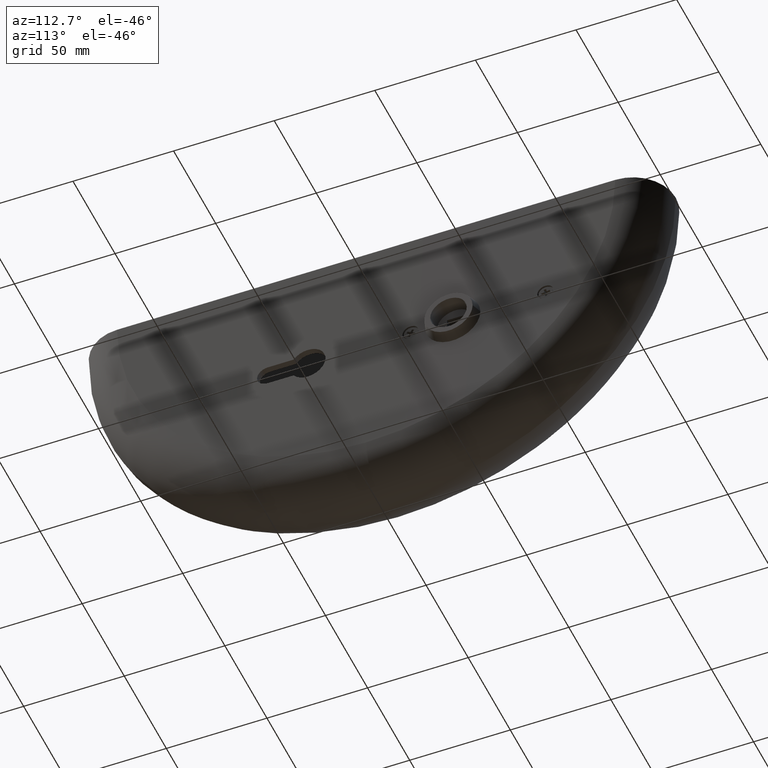
[diagram: clean part render]
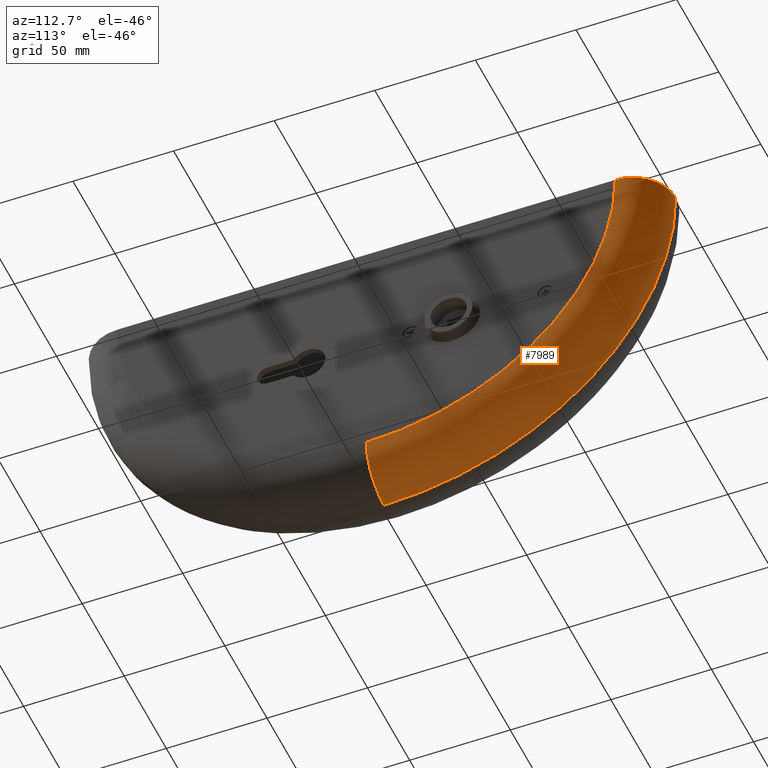
[diagram: same view with one face highlighted and labeled with its STEP entity id]
A machine part, auxiliary view. The second image highlights one B-rep face of the part: STEP entity #7989.
In plain terms, the highlighted toroidal blend (fillet) surface has major radius 123.8 mm and minor (blend) radius 21.2 mm.
Its self-contained STEP definition (entity closure, byte-faithful):
#464 = CARTESIAN_POINT ( 'NONE',  ( 21.19999999999999929, 0.000000000000000000, -123.7999999999999972 ) ) ;
#614 = DIRECTION ( 'NONE',  ( 0.000000000000000000, 1.776356839400250465E-15, -1.000000000000000000 ) ) ;
#738 = ORIENTED_EDGE ( 'NONE', *, *, #7790, .F. ) ;
#762 = ORIENTED_EDGE ( 'NONE', *, *, #3387, .F. ) ;
#1718 = CARTESIAN_POINT ( 'NONE',  ( 0.000000000000000000, 0.000000000000000000, -145.0000000000000000 ) ) ;
#1976 = VERTEX_POINT ( 'NONE', #464 ) ;
#2106 = DIRECTION ( 'NONE',  ( 0.000000000000000000, 1.000000000000000000, 2.871266442996094569E-16 ) ) ;
#2474 = AXIS2_PLACEMENT_3D ( 'NONE', #2576, #15585, #15695 ) ;
#2576 = CARTESIAN_POINT ( 'NONE',  ( 0.000000000000000000, 0.000000000000000000, 0.000000000000000000 ) ) ;
#3183 = DIRECTION ( 'NONE',  ( -1.000000000000000000, -0.000000000000000000, -0.000000000000000000 ) ) ;
#3235 = CARTESIAN_POINT ( 'NONE',  ( 21.19999999999999929, 123.7999999999999972, 4.942406637210611103E-14 ) ) ;
#3374 = CIRCLE ( 'NONE', #5620, 21.19999999999999574 ) ;
#3387 = EDGE_CURVE ( 'NONE', #1976, #13237, #12511, .T. ) ;
#4480 = CARTESIAN_POINT ( 'NONE',  ( 0.000000000000000000, 0.000000000000000000, -123.7999999999999972 ) ) ;
#5225 = VERTEX_POINT ( 'NONE', #9985 ) ;
#5435 = CIRCLE ( 'NONE', #11193, 21.19999999999999574 ) ;
#5620 = AXIS2_PLACEMENT_3D ( 'NONE', #15219, #8722, #2106 ) ;
#7050 = DIRECTION ( 'NONE',  ( 0.000000000000000000, 0.000000000000000000, -1.000000000000000000 ) ) ;
#7057 = FACE_OUTER_BOUND ( 'NONE', #11012, .T. ) ;
#7790 = EDGE_CURVE ( 'NONE', #15167, #1976, #5435, .T. ) ;
#7989 = ADVANCED_FACE ( 'NONE', ( #7057 ), #12354, .T. ) ;
#8477 = DIRECTION ( 'NONE',  ( 0.000000000000000000, -1.000000000000000000, 0.000000000000000000 ) ) ;
#8722 = DIRECTION ( 'NONE',  ( -0.000000000000000000, -2.871266442996094569E-16, 1.000000000000000000 ) ) ;
#9071 = AXIS2_PLACEMENT_3D ( 'NONE', #14885, #3183, #614 ) ;
#9985 = CARTESIAN_POINT ( 'NONE',  ( 0.000000000000000000, 145.0000000000000000, 5.551115123125782702E-14 ) ) ;
#10866 = ORIENTED_EDGE ( 'NONE', *, *, #11428, .F. ) ;
#11012 = EDGE_LOOP ( 'NONE', ( #738, #10866, #15186, #762 ) ) ;
#11020 = EDGE_CURVE ( 'NONE', #13237, #5225, #3374, .T. ) ;
#11193 = AXIS2_PLACEMENT_3D ( 'NONE', #4480, #8477, #14873 ) ;
#11428 = EDGE_CURVE ( 'NONE', #5225, #15167, #11895, .T. ) ;
#11895 = CIRCLE ( 'NONE', #9071, 145.0000000000000000 ) ;
#12354 = TOROIDAL_SURFACE ( 'NONE', #2474, 123.7999999999999972, 21.19999999999999929 ) ;
#12511 = CIRCLE ( 'NONE', #15616, 123.7999999999999972 ) ;
#13237 = VERTEX_POINT ( 'NONE', #3235 ) ;
#14629 = DIRECTION ( 'NONE',  ( 1.000000000000000000, 0.000000000000000000, 0.000000000000000000 ) ) ;
#14873 = DIRECTION ( 'NONE',  ( 0.000000000000000000, 0.000000000000000000, -1.000000000000000000 ) ) ;
#14885 = CARTESIAN_POINT ( 'NONE',  ( 0.000000000000000000, 0.000000000000000000, 0.000000000000000000 ) ) ;
#15167 = VERTEX_POINT ( 'NONE', #1718 ) ;
#15186 = ORIENTED_EDGE ( 'NONE', *, *, #11020, .F. ) ;
#15219 = CARTESIAN_POINT ( 'NONE',  ( 0.000000000000000000, 123.7999999999999972, 3.554627856429165428E-14 ) ) ;
#15585 = DIRECTION ( 'NONE',  ( 1.000000000000000000, 0.000000000000000000, 0.000000000000000000 ) ) ;
#15616 = AXIS2_PLACEMENT_3D ( 'NONE', #15925, #14629, #7050 ) ;
#15695 = DIRECTION ( 'NONE',  ( 0.000000000000000000, 0.000000000000000000, -1.000000000000000000 ) ) ;
#15925 = CARTESIAN_POINT ( 'NONE',  ( 21.19999999999999929, 0.000000000000000000, 0.000000000000000000 ) ) ;